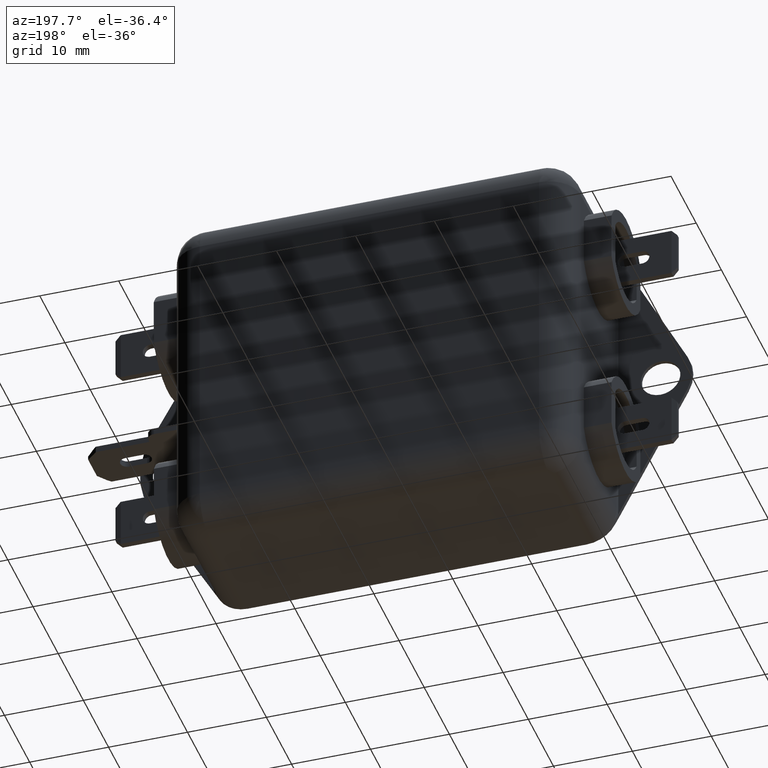
[diagram: clean part render]
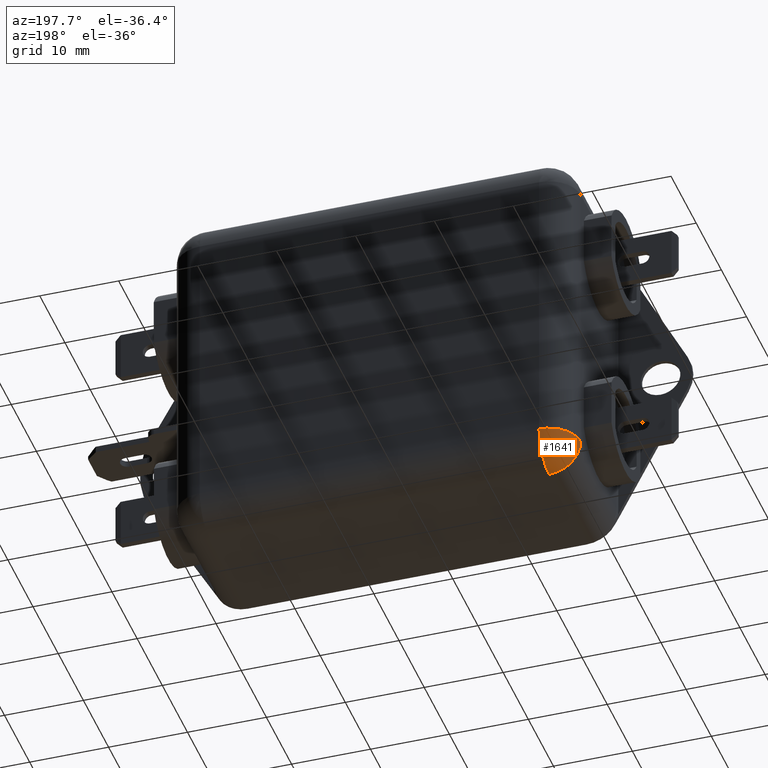
[diagram: same view with one face highlighted and labeled with its STEP entity id]
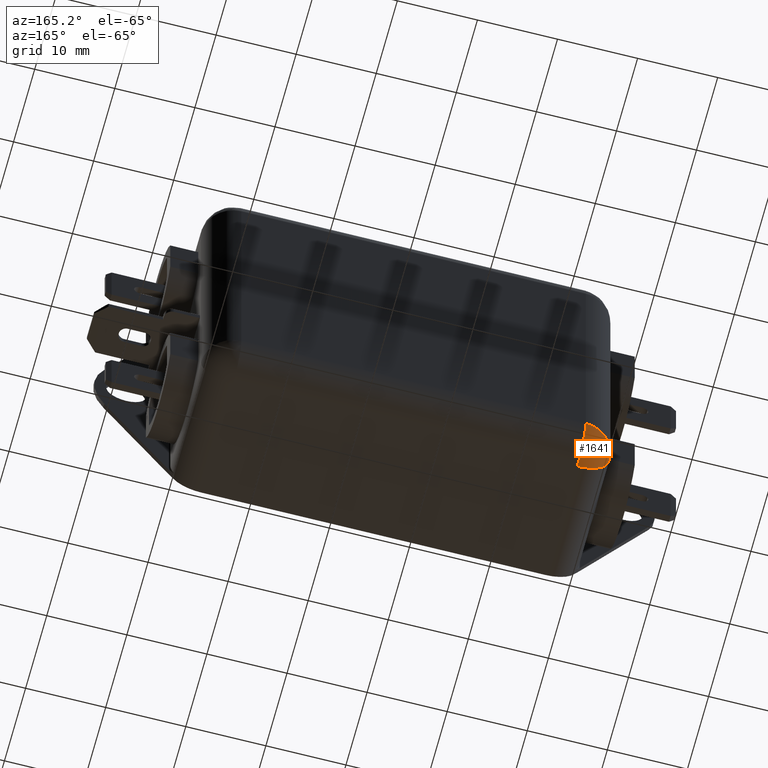
[diagram: same view with one face highlighted and labeled with its STEP entity id]
A machine part, auxiliary view. The second image highlights one B-rep face of the part: STEP entity #1641.
A second angle (auxiliary view) of the same face is appended — the face is thin or edge-on in the first view.
In plain terms, the highlighted spherical surface has radius 4 mm.
Its self-contained STEP definition (entity closure, byte-faithful):
#1641=ADVANCED_FACE('NONE',(#4295),#4296,.T.);
#1973=EDGE_CURVE('NONE',#4777,#4731,#4782,.T.);
#2097=EDGE_CURVE('NONE',#4622,#4777,#4941,.T.);
#2099=EDGE_CURVE('NONE',#4622,#4731,#4943,.T.);
#4295=FACE_OUTER_BOUND('',#7783,.T.);
#4296=SPHERICAL_SURFACE('',#7784,4.0);
#4622=VERTEX_POINT('NONE',#8242);
#4731=VERTEX_POINT('NONE',#8418);
#4777=VERTEX_POINT('NONE',#8496);
#4782=CIRCLE('',#8504,4.0);
#4941=CIRCLE('',#8769,4.0);
#4943=CIRCLE('',#8772,4.0);
#7783=EDGE_LOOP('',(#13128,#13129,#13130));
#7784=AXIS2_PLACEMENT_3D('',#13131,#13132,#13133);
#8242=CARTESIAN_POINT('',(-21.5,0.0,18.5));
#8418=CARTESIAN_POINT('',(-25.5,4.0,18.5));
#8496=CARTESIAN_POINT('',(-21.5,4.0,22.5));
#8504=AXIS2_PLACEMENT_3D('',#13755,#13756,#13757);
#8769=AXIS2_PLACEMENT_3D('',#13853,#13854,#13855);
#8772=AXIS2_PLACEMENT_3D('',#13856,#13857,#13858);
#13128=ORIENTED_EDGE('',*,*,#2097,.T.);
#13129=ORIENTED_EDGE('',*,*,#1973,.T.);
#13130=ORIENTED_EDGE('',*,*,#2099,.F.);
#13131=CARTESIAN_POINT('',(-21.5,4.0,18.5));
#13132=DIRECTION('',(0.0,1.0,0.0));
#13133=DIRECTION('',(1.0,0.0,0.0));
#13755=CARTESIAN_POINT('',(-21.5,4.0,18.5));
#13756=DIRECTION('',(0.0,-1.0,0.0));
#13757=DIRECTION('',(0.0,0.0,-1.0));
#13853=CARTESIAN_POINT('',(-21.5,4.0,18.5));
#13854=DIRECTION('',(-1.0,0.0,0.0));
#13855=DIRECTION('',(0.0,0.0,1.0));
#13856=CARTESIAN_POINT('',(-21.5,4.0,18.5));
#13857=DIRECTION('',(0.0,0.0,-1.0));
#13858=DIRECTION('',(1.0,0.0,0.0));